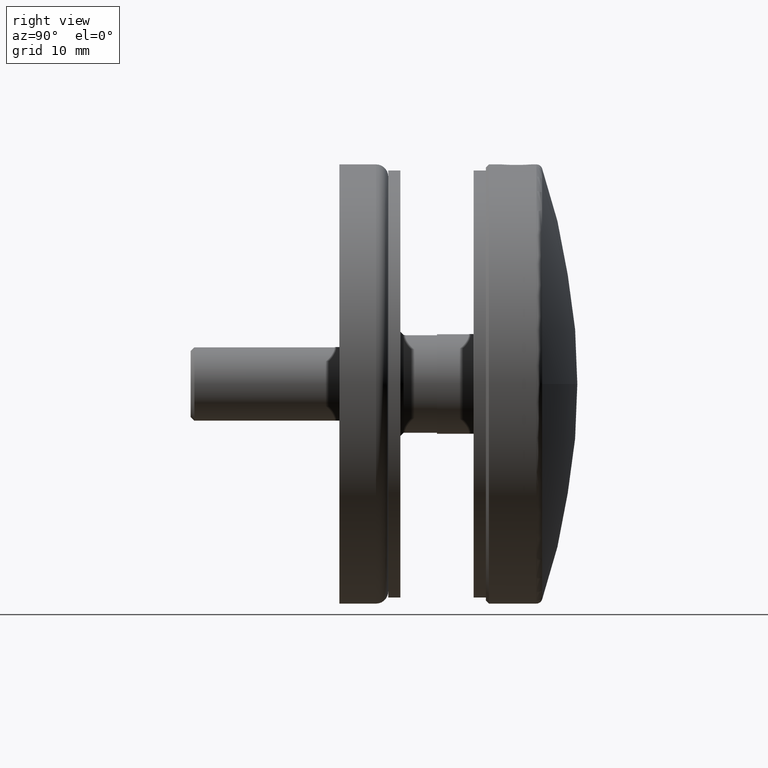
[diagram: clean part render]
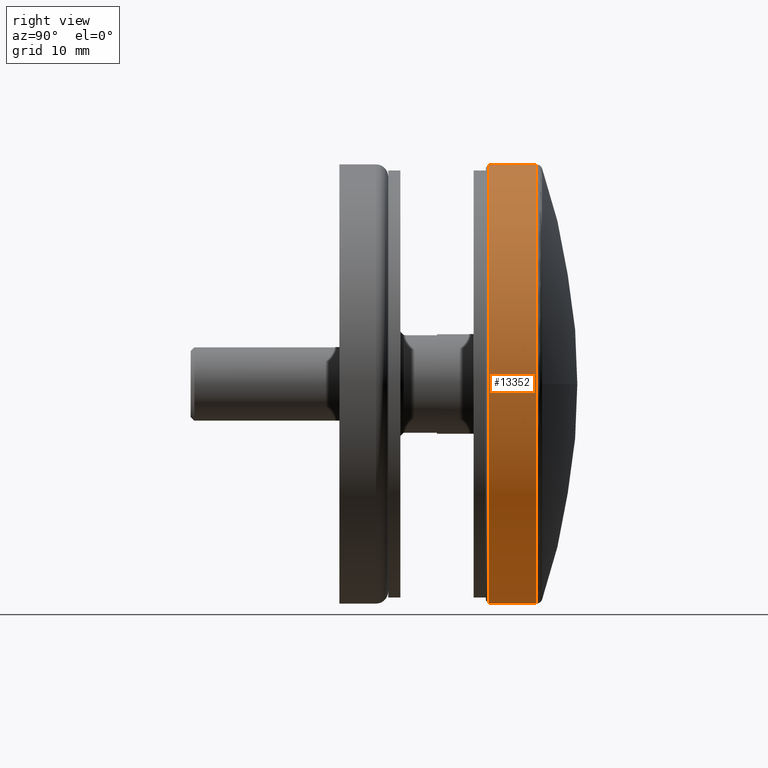
[diagram: same view with one face highlighted and labeled with its STEP entity id]
A machine part, right view. The second image highlights one B-rep face of the part: STEP entity #13352.
In plain terms, the highlighted cylindrical surface (partial cylindrical patch) has radius 36 mm, axis along (-0, -1, -0).
Its self-contained STEP definition (entity closure, byte-faithful):
#49 = LINE ( 'NONE', #10090, #12449 ) ;
#194 = ORIENTED_EDGE ( 'NONE', *, *, #12054, .T. ) ;
#226 = VERTEX_POINT ( 'NONE', #2477 ) ;
#649 = CARTESIAN_POINT ( 'NONE',  ( 2.246494071540569681, 6.109112746715662290, 35.92989317300718710 ) ) ;
#806 = CARTESIAN_POINT ( 'NONE',  ( 1.523321630836188767, 3.011001512690791415, 35.96801274031731310 ) ) ;
#832 = AXIS2_PLACEMENT_3D ( 'NONE', #5208, #2790, #1671 ) ;
#964 = VERTEX_POINT ( 'NONE', #10623 ) ;
#1192 = ORIENTED_EDGE ( 'NONE', *, *, #14536, .T. ) ;
#1350 = CARTESIAN_POINT ( 'NONE',  ( 0.000000000000000000, 0.5000000000000281997, -36.00000000000000711 ) ) ;
#1474 = DIRECTION ( 'NONE',  ( 0.000000000000000000, 1.000000000000000000, 0.000000000000000000 ) ) ;
#1664 = CARTESIAN_POINT ( 'NONE',  ( 0.1649194884314347798, 2.500000000000006661, 36.00000000000001421 ) ) ;
#1671 = DIRECTION ( 'NONE',  ( 0.000000000000000000, 0.000000000000000000, -1.000000000000000000 ) ) ;
#1858 = CARTESIAN_POINT ( 'NONE',  ( 2.499999999999994671, 5.165272147065594233, 35.91308953571108020 ) ) ;
#1919 = EDGE_CURVE ( 'NONE', #3858, #9816, #8378, .T. ) ;
#2471 = DIRECTION ( 'NONE',  ( -0.000000000000000000, -1.000000000000000000, -0.000000000000000000 ) ) ;
#2477 = CARTESIAN_POINT ( 'NONE',  ( 0.000000000000000000, 8.283268073071045734, -36.00000000000000711 ) ) ;
#2790 = DIRECTION ( 'NONE',  ( -0.000000000000000000, -1.000000000000000000, -0.000000000000000000 ) ) ;
#2885 = CARTESIAN_POINT ( 'NONE',  ( 1.882484714248133129, 6.653132995970461927, 35.95093311496936650 ) ) ;
#2942 = CARTESIAN_POINT ( 'NONE',  ( 2.420198747646445270, 5.647454841978923668, 35.91856975346745884 ) ) ;
#2948 = CARTESIAN_POINT ( 'NONE',  ( 1.108355645633868347, 2.753133922673264955, 35.98325288147759693 ) ) ;
#3091 = CARTESIAN_POINT ( 'NONE',  ( 2.433629761848767448, 4.341706095475305283, 35.91786587470677716 ) ) ;
#3454 = VECTOR ( 'NONE', #14412, 1000.000000000000000 ) ;
#3503 = DIRECTION ( 'NONE',  ( -0.000000000000000000, -1.000000000000000000, -0.000000000000000000 ) ) ;
#3621 = ORIENTED_EDGE ( 'NONE', *, *, #1919, .F. ) ;
#3858 = VERTEX_POINT ( 'NONE', #15151 ) ;
#4000 = AXIS2_PLACEMENT_3D ( 'NONE', #8013, #3503, #8274 ) ;
#4083 = CARTESIAN_POINT ( 'NONE',  ( 0.8059733474903841843, 7.372115606973157931, 35.99129152981032576 ) ) ;
#4371 = VERTEX_POINT ( 'NONE', #1350 ) ;
#4560 = LINE ( 'NONE', #13355, #11850 ) ;
#4988 = VERTEX_POINT ( 'NONE', #12171 ) ;
#5208 = CARTESIAN_POINT ( 'NONE',  ( 0.000000000000000000, 8.283268073071045734, 0.000000000000000000 ) ) ;
#5346 = CARTESIAN_POINT ( 'NONE',  ( 0.6482993256447587838, 7.420081111375619543, 35.99452416817793221 ) ) ;
#5353 = CARTESIAN_POINT ( 'NONE',  ( 1.251867257478152640, 2.829872781806128224, 35.97848353736237215 ) ) ;
#5398 = CARTESIAN_POINT ( 'NONE',  ( 1.252432361829602936, 7.169896812676905817, 35.97846761039829744 ) ) ;
#5449 = CARTESIAN_POINT ( 'NONE',  ( 1.882522981020823938, 3.346919144507660704, 35.95093089141406750 ) ) ;
#5659 = CARTESIAN_POINT ( 'NONE',  ( 2.246409149487826884, 3.890891302116890049, 35.92989780998399851 ) ) ;
#5700 = EDGE_CURVE ( 'NONE', #9816, #964, #9171, .T. ) ;
#6403 = CARTESIAN_POINT ( 'NONE',  ( 4.408728477081775166E-15, 2.500000000000005773, 36.00000000000000711 ) ) ;
#6554 = CARTESIAN_POINT ( 'NONE',  ( 0.1631540141051772697, 7.499999999999996447, 36.00000000000001421 ) ) ;
#6759 = CARTESIAN_POINT ( 'NONE',  ( 2.168569099366191466, 3.745313039599746929, 35.93474187840207890 ) ) ;
#6886 = CIRCLE ( 'NONE', #10378, 36.00000000000000711 ) ;
#7697 = CARTESIAN_POINT ( 'NONE',  ( 0.8055424353054391196, 2.627667647319987587, 35.99130508267928263 ) ) ;
#7800 = EDGE_CURVE ( 'NONE', #13097, #4371, #6886, .T. ) ;
#7837 = CARTESIAN_POINT ( 'NONE',  ( 2.499999999999994227, 5.000000000000000000, 35.91308953571107310 ) ) ;
#8013 = CARTESIAN_POINT ( 'NONE',  ( 0.000000000000000000, 0.000000000000000000, 0.000000000000000000 ) ) ;
#8101 = ORIENTED_EDGE ( 'NONE', *, *, #12322, .F. ) ;
#8165 = EDGE_CURVE ( 'NONE', #226, #4988, #9314, .T. ) ;
#8274 = DIRECTION ( 'NONE',  ( 0.000000000000000000, 0.000000000000000000, -1.000000000000000000 ) ) ;
#8336 = LINE ( 'NONE', #15513, #3454 ) ;
#8378 = B_SPLINE_CURVE_WITH_KNOTS ( 'NONE', 3,
 ( #6403, #1664, #13650, #14846, #7697, #2948, #5353, #806, #11413, #5449, #14999, #6759, #5659, #3091, #15050, #13910 ),
 .UNSPECIFIED., .F., .F.,
 ( 4, 2, 2, 2, 2, 2, 2, 4 ),
 ( 0.01172883034494133503, 0.01221712467554614094, 0.01270541900615094685, 0.01319371333675575103, 0.01368200766736055694, 0.01417030199796536286, 0.01465859632857016703, 0.01563518498977977886 ),
 .UNSPECIFIED. ) ;
#8495 = CYLINDRICAL_SURFACE ( 'NONE', #4000, 36.00000000000000711 ) ;
#8676 = CARTESIAN_POINT ( 'NONE',  ( 0.000000000000000000, 0.5000000000000281997, 0.000000000000000000 ) ) ;
#9057 = CARTESIAN_POINT ( 'NONE',  ( 0.3254535902923567092, 7.484182876085077041, 35.99889084499329073 ) ) ;
#9171 = B_SPLINE_CURVE_WITH_KNOTS ( 'NONE', 3,
 ( #7837, #1858, #12657, #2942, #13694, #649, #13642, #14836, #2885, #11296, #12502, #5398, #11406, #4083, #5346, #9057, #6554, #14900 ),
 .UNSPECIFIED., .F., .F.,
 ( 4, 2, 2, 2, 2, 2, 2, 2, 4 ),
 ( 0.000000000000000000, 0.0004887675614798149852, 0.0009775351229596299703, 0.001466302684439444847, 0.001955070245919259941, 0.002443837807399075034, 0.002932605368878890562, 0.003421372930358706089, 0.003910140491838521616 ),
 .UNSPECIFIED. ) ;
#9314 = CIRCLE ( 'NONE', #832, 36.00000000000000711 ) ;
#9816 = VERTEX_POINT ( 'NONE', #14956 ) ;
#9878 = DIRECTION ( 'NONE',  ( 0.000000000000000000, 0.000000000000000000, -1.000000000000000000 ) ) ;
#9946 = CARTESIAN_POINT ( 'NONE',  ( 4.408728476930471644E-15, 0.5000000000000281997, 36.00000000000000711 ) ) ;
#10020 = ORIENTED_EDGE ( 'NONE', *, *, #7800, .T. ) ;
#10090 = CARTESIAN_POINT ( 'NONE',  ( 0.000000000000000000, 0.000000000000000000, -36.00000000000000711 ) ) ;
#10378 = AXIS2_PLACEMENT_3D ( 'NONE', #8676, #1474, #9878 ) ;
#10623 = CARTESIAN_POINT ( 'NONE',  ( 4.408728521376314994E-15, 7.499999999999994671, 36.00000000000000711 ) ) ;
#10934 = ORIENTED_EDGE ( 'NONE', *, *, #5700, .F. ) ;
#11296 = CARTESIAN_POINT ( 'NONE',  ( 1.651760703819995069, 6.883688928422159847, 35.96227227406097882 ) ) ;
#11406 = CARTESIAN_POINT ( 'NONE',  ( 1.106925347317032182, 7.247496777567778103, 35.98329300239385731 ) ) ;
#11413 = CARTESIAN_POINT ( 'NONE',  ( 1.651935701471120455, 3.116472053015424848, 35.96226401620881319 ) ) ;
#11850 = VECTOR ( 'NONE', #2471, 1000.000000000000000 ) ;
#12054 = EDGE_CURVE ( 'NONE', #3858, #13097, #8336, .T. ) ;
#12171 = CARTESIAN_POINT ( 'NONE',  ( 4.408728476930471644E-15, 8.283268073071045734, 36.00000000000000711 ) ) ;
#12322 = EDGE_CURVE ( 'NONE', #226, #4371, #49, .T. ) ;
#12449 = VECTOR ( 'NONE', #13677, 1000.000000000000000 ) ;
#12502 = CARTESIAN_POINT ( 'NONE',  ( 1.525859075826418554, 6.987157034394018140, 35.96790892579322474 ) ) ;
#12570 = EDGE_LOOP ( 'NONE', ( #14051, #1192, #10934, #3621, #194, #10020, #8101 ) ) ;
#12601 = FACE_OUTER_BOUND ( 'NONE', #12570, .T. ) ;
#12657 = CARTESIAN_POINT ( 'NONE',  ( 2.483772441538111053, 5.327771580780264138, 35.91422962519832396 ) ) ;
#13097 = VERTEX_POINT ( 'NONE', #9946 ) ;
#13352 = ADVANCED_FACE ( 'NONE', ( #12601 ), #8495, .T. ) ;
#13355 = CARTESIAN_POINT ( 'NONE',  ( 4.408728476930471644E-15, 0.000000000000000000, 36.00000000000000711 ) ) ;
#13642 = CARTESIAN_POINT ( 'NONE',  ( 2.169652393862858464, 6.252722497582260175, 35.93467510792716268 ) ) ;
#13650 = CARTESIAN_POINT ( 'NONE',  ( 0.3277163094735186522, 2.516232237394314009, 35.99886247907269166 ) ) ;
#13677 = DIRECTION ( 'NONE',  ( -0.000000000000000000, -1.000000000000000000, -0.000000000000000000 ) ) ;
#13694 = CARTESIAN_POINT ( 'NONE',  ( 2.372076657494690100, 5.806299590327877347, 35.92182082478760208 ) ) ;
#13910 = CARTESIAN_POINT ( 'NONE',  ( 2.499999999999994227, 5.000000000000000000, 35.91308953571107310 ) ) ;
#14051 = ORIENTED_EDGE ( 'NONE', *, *, #8165, .T. ) ;
#14412 = DIRECTION ( 'NONE',  ( -0.000000000000000000, -1.000000000000000000, -0.000000000000000000 ) ) ;
#14536 = EDGE_CURVE ( 'NONE', #4988, #964, #4560, .T. ) ;
#14836 = CARTESIAN_POINT ( 'NONE',  ( 1.988113903495127399, 6.524502631310595824, 35.94517588952938070 ) ) ;
#14846 = CARTESIAN_POINT ( 'NONE',  ( 0.6470474432534109033, 2.579704587403963245, 35.99453885484381743 ) ) ;
#14900 = CARTESIAN_POINT ( 'NONE',  ( 4.408728521376314994E-15, 7.499999999999994671, 36.00000000000000711 ) ) ;
#14956 = CARTESIAN_POINT ( 'NONE',  ( 2.499999999999994227, 5.000000000000000000, 35.91308953571107310 ) ) ;
#14999 = CARTESIAN_POINT ( 'NONE',  ( 1.985944321262599788, 3.472598134029830419, 35.94529720226214664 ) ) ;
#15050 = CARTESIAN_POINT ( 'NONE',  ( 2.499999999999993783, 4.669775742994571210, 35.91308953571108020 ) ) ;
#15151 = CARTESIAN_POINT ( 'NONE',  ( 4.408728477081775166E-15, 2.500000000000005773, 36.00000000000000711 ) ) ;
#15513 = CARTESIAN_POINT ( 'NONE',  ( 4.408728476930471644E-15, 0.000000000000000000, 36.00000000000000711 ) ) ;